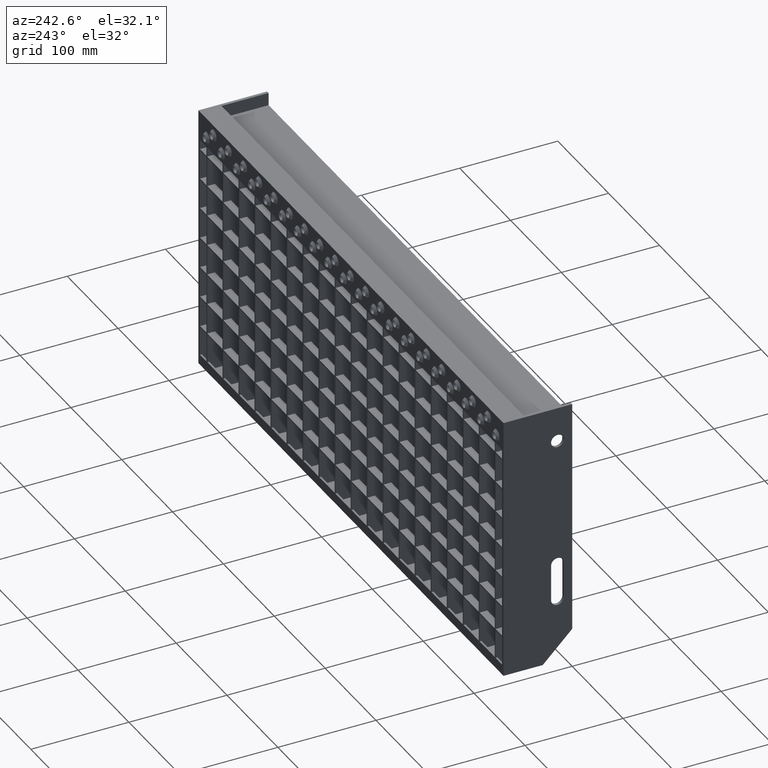
[diagram: clean part render]
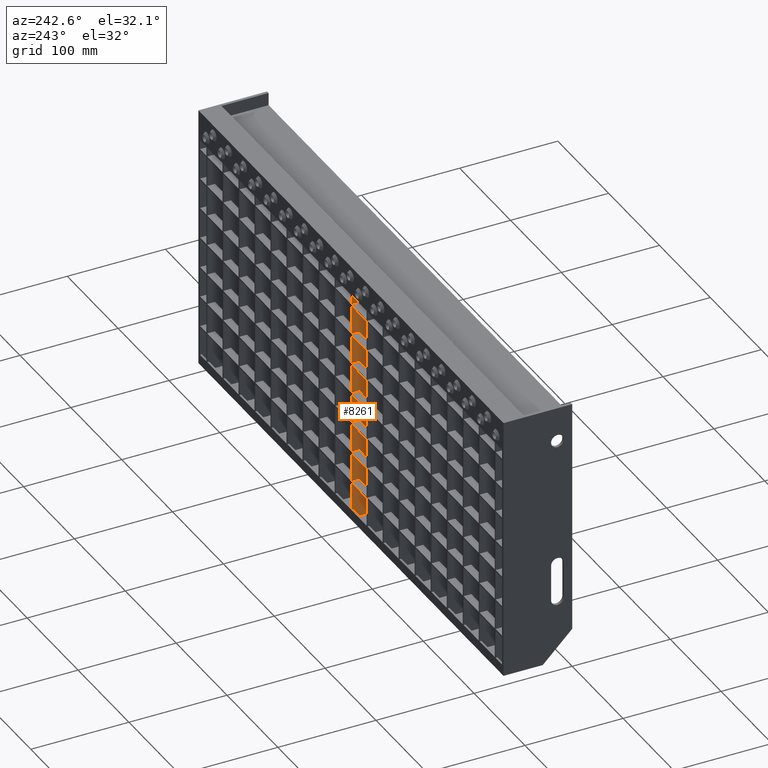
[diagram: same view with one face highlighted and labeled with its STEP entity id]
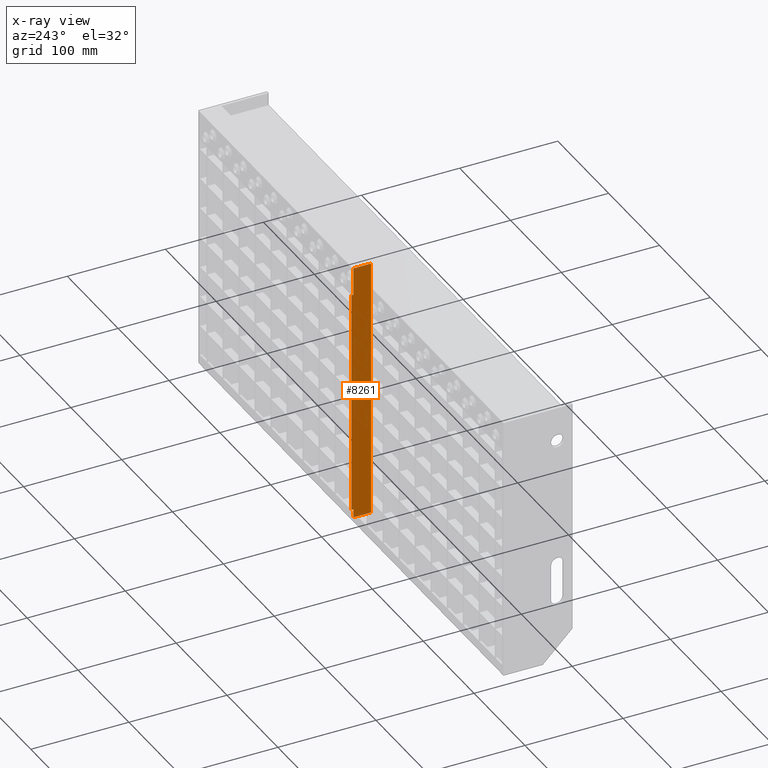
[diagram: x-ray of the same camera — body ghosted, the highlighted face saturated]
A machine part, auxiliary view. The second image highlights one B-rep face of the part: STEP entity #8261.
The next image is the same camera in x-ray: the body ghosted, the highlighted face saturated — about 0% of this face is hidden behind the body in this view.
In plain terms, the highlighted planar face has unit normal (-1, 0, 0).
Its self-contained STEP definition (entity closure, byte-faithful):
#152 = VECTOR ( 'NONE', #10896, 1000.000000000000000 ) ;
#163 = VERTEX_POINT ( 'NONE', #19373 ) ;
#513 = EDGE_CURVE ( 'NONE', #18769, #17816, #21009, .T. ) ;
#616 = AXIS2_PLACEMENT_3D ( 'NONE', #24098, #20296, #18345 ) ;
#644 = VERTEX_POINT ( 'NONE', #10082 ) ;
#753 = CARTESIAN_POINT ( 'NONE',  ( -0.7500000000000000000, 70.00000000000000000, -29.99999999999999300 ) ) ;
#954 = CARTESIAN_POINT ( 'NONE',  ( -0.7500000000000006700, 70.00000000000011400, -259.5000000000000000 ) ) ;
#1049 = DIRECTION ( 'NONE',  ( 0.0000000000000000000, 0.0000000000000000000, 1.000000000000000000 ) ) ;
#1210 = CARTESIAN_POINT ( 'NONE',  ( -0.7500000000000000000, 68.00000000000000000, -13.41869858279433600 ) ) ;
#1359 = VECTOR ( 'NONE', #3535, 1000.000000000000000 ) ;
#1396 = CARTESIAN_POINT ( 'NONE',  ( -0.7500000000000000000, 50.00000000000000000, -1.999999999999993600 ) ) ;
#1818 = CARTESIAN_POINT ( 'NONE',  ( -0.7500000000000000000, 67.99999999999997200, -268.0000000000000000 ) ) ;
#2560 = DIRECTION ( 'NONE',  ( 0.0000000000000000000, -1.000000000000000000, -1.204669080539449300E-016 ) ) ;
#2669 = VERTEX_POINT ( 'NONE', #10541 ) ;
#2739 = CARTESIAN_POINT ( 'NONE',  ( -0.7500000000000000000, 50.00000000000000000, -1.999999999999993600 ) ) ;
#2895 = CARTESIAN_POINT ( 'NONE',  ( -0.7500000000000000000, 68.00000000000000000, -1.999999999999991300 ) ) ;
#3215 = EDGE_CURVE ( 'NONE', #7363, #14517, #23693, .T. ) ;
#3273 = VECTOR ( 'NONE', #9420, 1000.000000000000000 ) ;
#3456 = EDGE_LOOP ( 'NONE', ( #11683, #9322, #3784, #7073, #18588, #15238, #12446, #19684, #9234, #17891, #21482, #13116 ) ) ;
#3535 = DIRECTION ( 'NONE',  ( 0.0000000000000000000, 0.0000000000000000000, 1.000000000000000000 ) ) ;
#3543 = CARTESIAN_POINT ( 'NONE',  ( -0.7500000000000000000, 50.00000000000000000, -268.0000000000000000 ) ) ;
#3579 = LINE ( 'NONE', #7083, #152 ) ;
#3784 = ORIENTED_EDGE ( 'NONE', *, *, #21885, .F. ) ;
#4011 = CARTESIAN_POINT ( 'NONE',  ( -0.7500000000000000000, 70.00000000000000000, -29.99999999999999300 ) ) ;
#4731 = DIRECTION ( 'NONE',  ( 0.0000000000000000000, 0.0000000000000000000, 1.000000000000000000 ) ) ;
#5716 = DIRECTION ( 'NONE',  ( 0.0000000000000000000, 1.632680918566405200E-015, 1.000000000000000000 ) ) ;
#5757 = VERTEX_POINT ( 'NONE', #1210 ) ;
#6140 = CARTESIAN_POINT ( 'NONE',  ( -0.7500000000000000000, 50.00000000000000000, -1.999999999999993600 ) ) ;
#6369 = VERTEX_POINT ( 'NONE', #16039 ) ;
#7073 = ORIENTED_EDGE ( 'NONE', *, *, #13290, .F. ) ;
#7083 = CARTESIAN_POINT ( 'NONE',  ( -0.7500000000000000000, 50.00000000000000000, -1.999999999999993600 ) ) ;
#7363 = VERTEX_POINT ( 'NONE', #954 ) ;
#7507 = LINE ( 'NONE', #10589, #22618 ) ;
#8261 = ADVANCED_FACE ( 'NONE', ( #21286 ), #20213, .T. ) ;
#9234 = ORIENTED_EDGE ( 'NONE', *, *, #15065, .F. ) ;
#9322 = ORIENTED_EDGE ( 'NONE', *, *, #3215, .F. ) ;
#9420 = DIRECTION ( 'NONE',  ( 0.0000000000000000000, 1.000000000000000000, 0.0000000000000000000 ) ) ;
#10082 = CARTESIAN_POINT ( 'NONE',  ( -0.7500000000000000000, 68.00000000000011400, -6.581301417205663600 ) ) ;
#10416 = CARTESIAN_POINT ( 'NONE',  ( -0.7500000000000000000, 68.00000000000000000, -29.99999999999999300 ) ) ;
#10541 = CARTESIAN_POINT ( 'NONE',  ( -0.7500000000000839300, 68.00000000000000000, -30.00000000000000000 ) ) ;
#10589 = CARTESIAN_POINT ( 'NONE',  ( -0.7500000000000000000, 68.00000000000000000, -1.999999999999991300 ) ) ;
#10896 = DIRECTION ( 'NONE',  ( 0.0000000000000000000, 0.0000000000000000000, -1.000000000000000000 ) ) ;
#11580 = VERTEX_POINT ( 'NONE', #3543 ) ;
#11683 = ORIENTED_EDGE ( 'NONE', *, *, #15906, .F. ) ;
#12086 = LINE ( 'NONE', #10416, #13646 ) ;
#12289 = EDGE_CURVE ( 'NONE', #11580, #14854, #17469, .T. ) ;
#12446 = ORIENTED_EDGE ( 'NONE', *, *, #24505, .F. ) ;
#13116 = ORIENTED_EDGE ( 'NONE', *, *, #16131, .F. ) ;
#13164 = CARTESIAN_POINT ( 'NONE',  ( -0.7500000000000000000, 50.00000000000000000, -268.0000000000000000 ) ) ;
#13290 = EDGE_CURVE ( 'NONE', #14854, #6369, #19297, .T. ) ;
#13646 = VECTOR ( 'NONE', #4731, 1000.000000000000000 ) ;
#13756 = EDGE_CURVE ( 'NONE', #5757, #644, #25099, .T. ) ;
#14062 = VECTOR ( 'NONE', #5716, 1000.000000000000000 ) ;
#14171 = VECTOR ( 'NONE', #1049, 1000.000000000000000 ) ;
#14517 = VERTEX_POINT ( 'NONE', #4011 ) ;
#14854 = VERTEX_POINT ( 'NONE', #15551 ) ;
#14918 = VECTOR ( 'NONE', #17769, 1000.000000000000000 ) ;
#14980 = DIRECTION ( 'NONE',  ( 0.0000000000000000000, 0.0000000000000000000, -1.000000000000000000 ) ) ;
#15065 = EDGE_CURVE ( 'NONE', #22882, #18769, #7507, .T. ) ;
#15238 = ORIENTED_EDGE ( 'NONE', *, *, #23129, .F. ) ;
#15551 = CARTESIAN_POINT ( 'NONE',  ( -0.7500000000000000000, 67.99999999999997200, -268.0000000000000000 ) ) ;
#15906 = EDGE_CURVE ( 'NONE', #14517, #2669, #25346, .T. ) ;
#16039 = CARTESIAN_POINT ( 'NONE',  ( -0.7500000000000000000, 67.99999999999998600, -259.5000000000000000 ) ) ;
#16131 = EDGE_CURVE ( 'NONE', #2669, #5757, #12086, .T. ) ;
#16321 = LINE ( 'NONE', #20531, #14171 ) ;
#16887 = CARTESIAN_POINT ( 'NONE',  ( -0.7500000000000000000, 67.99999999999998600, -259.5000000000000000 ) ) ;
#17293 = VECTOR ( 'NONE', #18879, 1000.000000000000000 ) ;
#17444 = CARTESIAN_POINT ( 'NONE',  ( -0.7500000000000000000, 70.00000000000000000, -29.99999999999999300 ) ) ;
#17469 = LINE ( 'NONE', #13164, #3273 ) ;
#17769 = DIRECTION ( 'NONE',  ( 0.0000000000000000000, -1.000000000000000000, 0.0000000000000000000 ) ) ;
#17816 = VERTEX_POINT ( 'NONE', #23731 ) ;
#17846 = VECTOR ( 'NONE', #14980, 1000.000000000000000 ) ;
#17891 = ORIENTED_EDGE ( 'NONE', *, *, #18101, .F. ) ;
#17942 = VECTOR ( 'NONE', #20583, 1000.000000000000000 ) ;
#18101 = EDGE_CURVE ( 'NONE', #644, #22882, #16321, .T. ) ;
#18345 = DIRECTION ( 'NONE',  ( 0.0000000000000000000, 0.0000000000000000000, 1.000000000000000000 ) ) ;
#18588 = ORIENTED_EDGE ( 'NONE', *, *, #12289, .F. ) ;
#18769 = VERTEX_POINT ( 'NONE', #6140 ) ;
#18776 = LINE ( 'NONE', #1396, #17846 ) ;
#18879 = DIRECTION ( 'NONE',  ( 0.0000000000000000000, 1.000000000000000000, 0.0000000000000000000 ) ) ;
#19297 = LINE ( 'NONE', #1818, #14062 ) ;
#19373 = CARTESIAN_POINT ( 'NONE',  ( -0.7500000000000000000, 50.00000000000000000, -259.5000000000000000 ) ) ;
#19684 = ORIENTED_EDGE ( 'NONE', *, *, #513, .F. ) ;
#20120 = VECTOR ( 'NONE', #20679, 1000.000000000000000 ) ;
#20213 = PLANE ( 'NONE',  #616 ) ;
#20296 = DIRECTION ( 'NONE',  ( -1.000000000000000000, 0.0000000000000000000, 0.0000000000000000000 ) ) ;
#20531 = CARTESIAN_POINT ( 'NONE',  ( -0.7500000000000000000, 68.00000000000000000, -29.99999999999999300 ) ) ;
#20583 = DIRECTION ( 'NONE',  ( 0.0000000000000000000, 0.0000000000000000000, -1.000000000000000000 ) ) ;
#20679 = DIRECTION ( 'NONE',  ( -0.0000000000000000000, -0.0000000000000000000, 1.000000000000000000 ) ) ;
#21009 = LINE ( 'NONE', #2739, #17942 ) ;
#21286 = FACE_OUTER_BOUND ( 'NONE', #3456, .T. ) ;
#21482 = ORIENTED_EDGE ( 'NONE', *, *, #13756, .F. ) ;
#21854 = LINE ( 'NONE', #16887, #17293 ) ;
#21885 = EDGE_CURVE ( 'NONE', #6369, #7363, #21854, .T. ) ;
#22618 = VECTOR ( 'NONE', #2560, 1000.000000000000000 ) ;
#22882 = VERTEX_POINT ( 'NONE', #2895 ) ;
#23011 = CARTESIAN_POINT ( 'NONE',  ( -0.7500000000000000000, 68.00000000000000000, -29.99999999999999300 ) ) ;
#23129 = EDGE_CURVE ( 'NONE', #163, #11580, #18776, .T. ) ;
#23693 = LINE ( 'NONE', #753, #20120 ) ;
#23731 = CARTESIAN_POINT ( 'NONE',  ( -0.7500000000000000000, 50.00000000000000000, -15.00000000000000000 ) ) ;
#24098 = CARTESIAN_POINT ( 'NONE',  ( -0.7500000000000000000, 0.0000000000000000000, 0.0000000000000000000 ) ) ;
#24505 = EDGE_CURVE ( 'NONE', #17816, #163, #3579, .T. ) ;
#25099 = LINE ( 'NONE', #23011, #1359 ) ;
#25346 = LINE ( 'NONE', #17444, #14918 ) ;